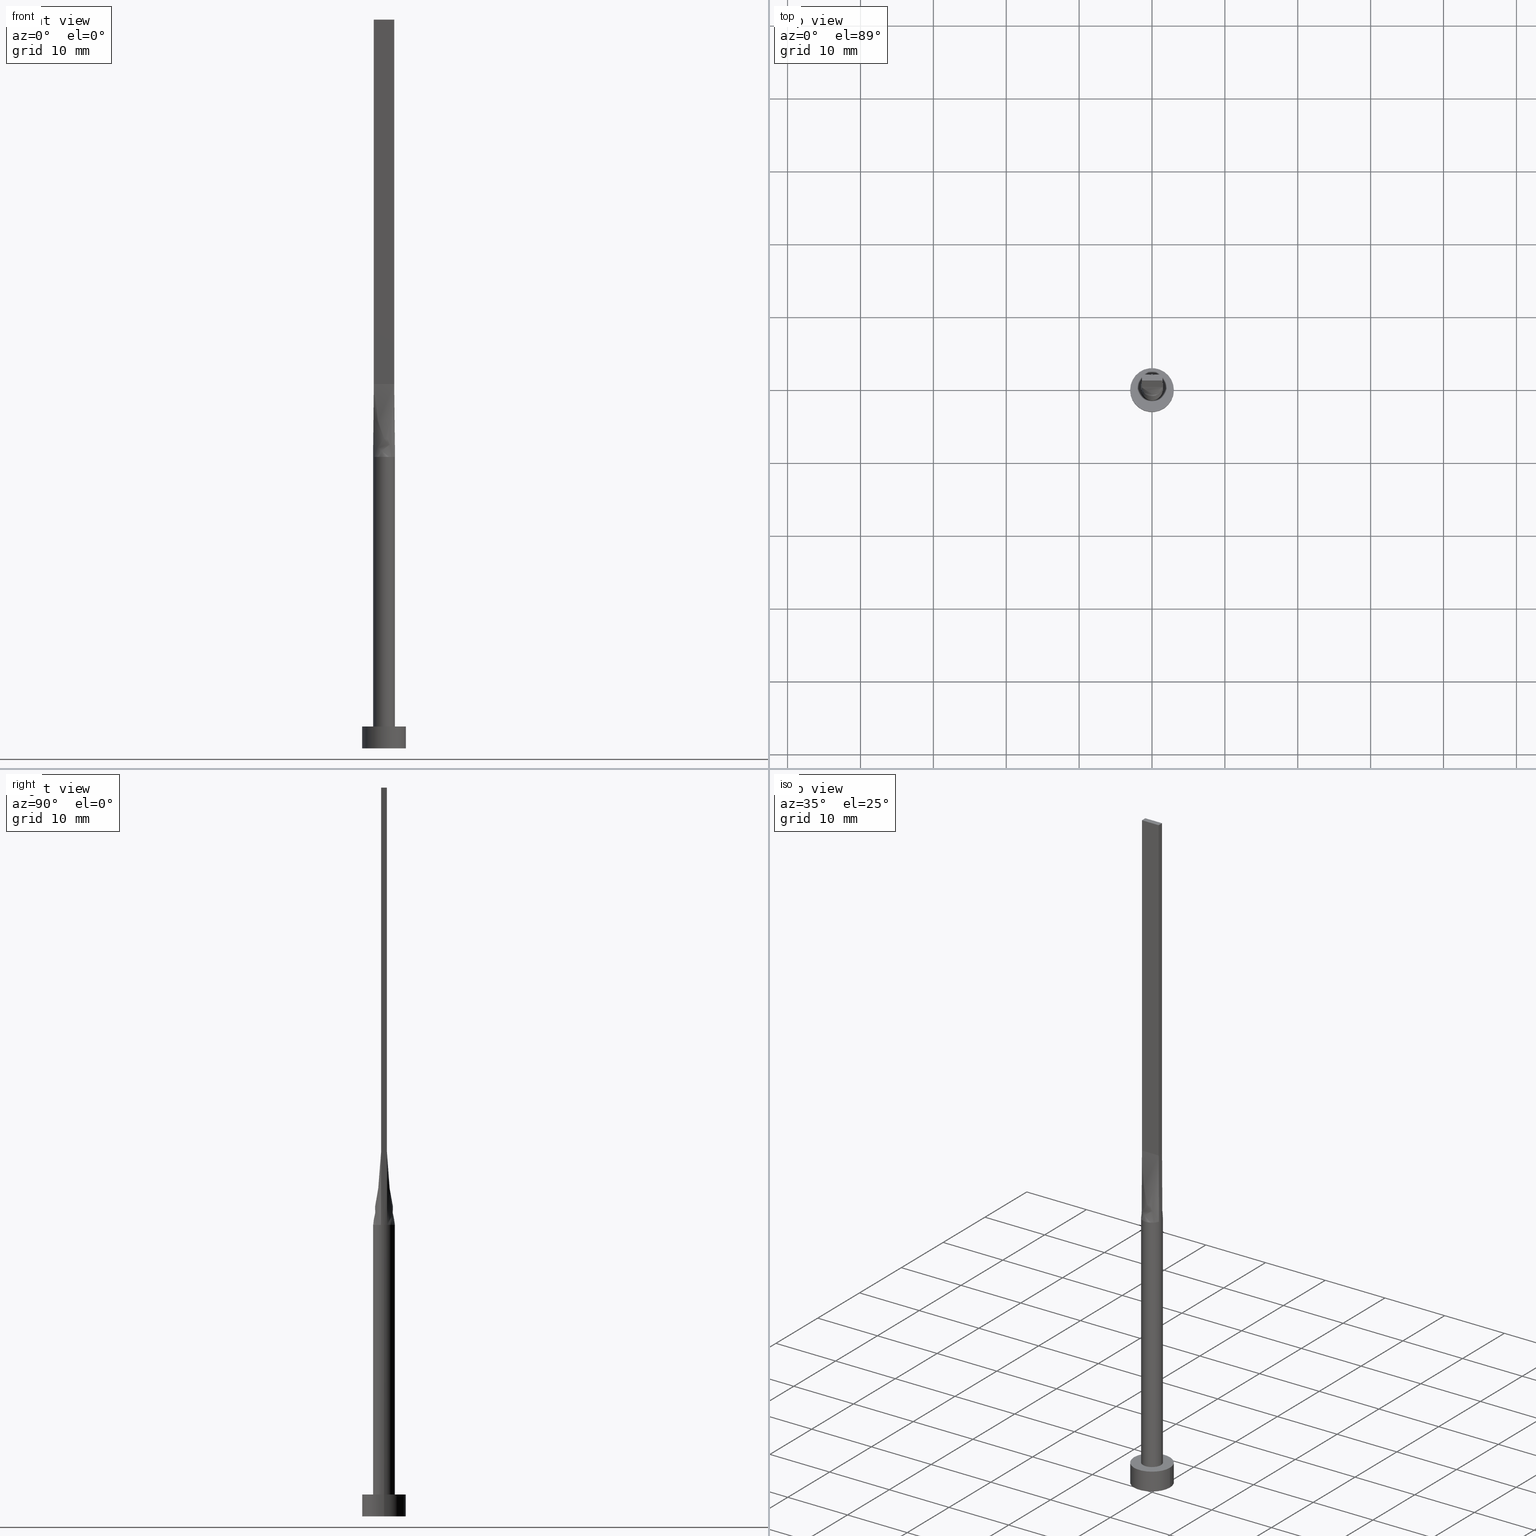
[diagram: canonical four-view strip — front | top / right | iso, engineering-drawing reading convention]
A machine part, canonical four-view strip (front | top / right | iso — engineering-drawing reading convention). The complete STEP part file that produces these views, byte-faithful:
ISO-10303-21;
HEADER;
FILE_DESCRIPTION (( 'STEP AP203' ),
    '1' );
FILE_NAME ('6774.STEP',
    '2026-02-12T09:08:50',
    ( '' ),
    ( '' ),
    'SwSTEP 2.0',
    'SolidWorks 2019',
    '' );
FILE_SCHEMA (( 'CONFIG_CONTROL_DESIGN' ));
ENDSEC;

DATA;
#1 = AXIS2_PLACEMENT_3D ( 'NONE', #413, #284, #7 ) ;
#2 = CARTESIAN_POINT ( 'NONE',  ( 1.480021770517838897, 0.2800062201479540103, 40.00000000000000000 ) ) ;
#3 = VERTEX_POINT ( 'NONE', #345 ) ;
#4 = LINE ( 'NONE', #138, #515 ) ;
#5 = CARTESIAN_POINT ( 'NONE',  ( 0.1166666666666691388, 0.4000000000000001887, 50.00000000000000000 ) ) ;
#6 = DIRECTION ( 'NONE',  ( 0.000000000000000000, 0.000000000000000000, 1.000000000000000000 ) ) ;
#7 = DIRECTION ( 'NONE',  ( 1.000000000000000000, 0.000000000000000000, 0.000000000000000000 ) ) ;
#8 = CARTESIAN_POINT ( 'NONE',  ( 1.283333333333333437, 0.4000000000000001887, 50.00000000000000000 ) ) ;
#9 = CC_DESIGN_PERSON_AND_ORGANIZATION_ASSIGNMENT ( #291, #432, ( #358 ) ) ;
#10 = FACE_OUTER_BOUND ( 'NONE', #320, .T. ) ;
#11 = AXIS2_PLACEMENT_3D ( 'NONE', #95, #57, #18 ) ;
#12 = CARTESIAN_POINT ( 'NONE',  ( 3.000000000000000444, 3.673940397442060361E-16, 3.000000000000000000 ) ) ;
#13 = ADVANCED_FACE ( 'NONE', ( #519 ), #73, .T. ) ;
#14 = DIRECTION ( 'NONE',  ( -0.004228551254826029733, 0.001208157501378870997, 0.9999903298081123104 ) ) ;
#15 = PERSON_AND_ORGANIZATION_ROLE ( 'design_owner' ) ;
#16 = CARTESIAN_POINT ( 'NONE',  ( 1.212111761082483197, 0.8950936653899574935, 40.00000000000000711 ) ) ;
#17 = CALENDAR_DATE ( 2026, 12, 2 ) ;
#18 = DIRECTION ( 'NONE',  ( 0.000000000000000000, -0.000000000000000000, -1.000000000000000000 ) ) ;
#19 = PERSON_AND_ORGANIZATION ( #514, #516 ) ;
#20 = VECTOR ( 'NONE', #128, 1000.000000000000000 ) ;
#21 = PERSON_AND_ORGANIZATION ( #514, #516 ) ;
#22 = DIRECTION ( 'NONE',  ( -0.000000000000000000, -0.000000000000000000, -1.000000000000000000 ) ) ;
#23 = ORIENTED_EDGE ( 'NONE', *, *, #438, .F. ) ;
#24 = CARTESIAN_POINT ( 'NONE',  ( -0.7158926189626803049, 1.330660769095148410, 40.00000000000000000 ) ) ;
#25 = CARTESIAN_POINT ( 'NONE',  ( -0.8665786268839192896, -1.235433898681764786, 40.00000000000000000 ) ) ;
#26 = APPROVAL_STATUS ( 'not_yet_approved' ) ;
#27 = APPROVAL ( #561, 'NEUR�EN�' ) ;
#28 = CARTESIAN_POINT ( 'NONE',  ( -1.399999999999999689, 0.1333333333333336923, 50.00000000000000000 ) ) ;
#29 = VERTEX_POINT ( 'NONE', #167 ) ;
#30 = CARTESIAN_POINT ( 'NONE',  ( -0.3767059690781846548, 1.463302066271692015, 39.99999999999999289 ) ) ;
#31 = AXIS2_PLACEMENT_3D ( 'NONE', #164, #469, #393 ) ;
#32 = CC_DESIGN_PERSON_AND_ORGANIZATION_ASSIGNMENT ( #435, #375, ( #488 ) ) ;
#33 = CARTESIAN_POINT ( 'NONE',  ( -0.8166666666666652086, 0.4000000000000001887, 50.00000000000000000 ) ) ;
#34 = ORIENTED_EDGE ( 'NONE', *, *, #115, .T. ) ;
#35 = LINE ( 'NONE', #215, #401 ) ;
#36 = VERTEX_POINT ( 'NONE', #68 ) ;
#37 = VERTEX_POINT ( 'NONE', #109 ) ;
#38 = EDGE_LOOP ( 'NONE', ( #479, #402 ) ) ;
#39 = VERTEX_POINT ( 'NONE', #252 ) ;
#40 = VECTOR ( 'NONE', #168, 1000.000000000000000 ) ;
#41 = UNCERTAINTY_MEASURE_WITH_UNIT (LENGTH_MEASURE( 1.000000000000000082E-05 ), #499, 'distance_accuracy_value', 'NONE');
#42 = LOCAL_TIME ( 10, 8, 50.00000000000000000, #288 ) ;
#43 = ORIENTED_EDGE ( 'NONE', *, *, #223, .T. ) ;
#44 = CARTESIAN_POINT ( 'NONE',  ( 0.8665786268839185125, -1.235433898681766340, 40.00000000000002132 ) ) ;
#45 = DIRECTION ( 'NONE',  ( 1.000000000000000000, 0.000000000000000000, -0.000000000000000000 ) ) ;
#46 = ORIENTED_EDGE ( 'NONE', *, *, #301, .F. ) ;
#47 = CARTESIAN_POINT ( 'NONE',  ( -3.000000000000000444, 0.000000000000000000, 3.000000000000000000 ) ) ;
#48 = CARTESIAN_POINT ( 'NONE',  ( 1.399999999999999689, 0.2666666666666668295, 50.00000000000000000 ) ) ;
#49 = EDGE_CURVE ( 'NONE', #267, #169, #248, .T. ) ;
#50 = ORIENTED_EDGE ( 'NONE', *, *, #191, .T. ) ;
#51 = VECTOR ( 'NONE', #311, 1000.000000000000000 ) ;
#52 = PLANE ( 'NONE',  #340 ) ;
#53 = FACE_OUTER_BOUND ( 'NONE', #181, .T. ) ;
#54 = EDGE_CURVE ( 'NONE', #39, #364, #478, .T. ) ;
#55 = DIRECTION ( 'NONE',  ( 1.000000000000000000, 0.000000000000000000, 0.000000000000000000 ) ) ;
#56 = CARTESIAN_POINT ( 'NONE',  ( -3.000000000000000444, 0.000000000000000000, 3.000000000000000000 ) ) ;
#57 = DIRECTION ( 'NONE',  ( 0.000000000000000000, -1.000000000000000000, 0.000000000000000000 ) ) ;
#58 = AXIS2_PLACEMENT_3D ( 'NONE', #111, #190, #415 ) ;
#59 = COORDINATED_UNIVERSAL_TIME_OFFSET ( 1, 0, .AHEAD. ) ;
#60 = CARTESIAN_POINT ( 'NONE',  ( -1.442368678646663405, -0.4121057215347019853, 40.00000000000000000 ) ) ;
#61 = FACE_OUTER_BOUND ( 'NONE', #440, .T. ) ;
#62 = ADVANCED_FACE ( 'NONE', ( #338 ), #197, .T. ) ;
#63 = DIRECTION ( 'NONE',  ( 0.000000000000000000, 0.000000000000000000, 1.000000000000000000 ) ) ;
#64 = DATE_AND_TIME ( #463, #206 ) ;
#65 = SHAPE_DEFINITION_REPRESENTATION ( #550, #495 ) ;
#66 = VECTOR ( 'NONE', #226, 1000.000000000000000 ) ;
#67 = ORIENTED_EDGE ( 'NONE', *, *, #438, .T. ) ;
#68 = CARTESIAN_POINT ( 'NONE',  ( 1.500000000000000000, -9.795443734464536283E-18, 39.99999999999999289 ) ) ;
#69 = EDGE_CURVE ( 'NONE', #37, #3, #81, .T. ) ;
#70 = CARTESIAN_POINT ( 'NONE',  ( -1.283333333333333437, -0.3999999999999996336, 50.00000000000000000 ) ) ;
#71 = CC_DESIGN_DATE_AND_TIME_ASSIGNMENT ( #151, #107, ( #343 ) ) ;
#72 = CARTESIAN_POINT ( 'NONE',  ( -1.442285921461235132, -0.4120816918460665224, 40.00000000000000000 ) ) ;
#73 = CYLINDRICAL_SURFACE ( 'NONE', #31, 1.500000000000000222 ) ;
#74 = VECTOR ( 'NONE', #22, 1000.000000000000000 ) ;
#75 = APPROVAL_PERSON_ORGANIZATION ( #19, #27, #210 ) ;
#76 = ORIENTED_EDGE ( 'NONE', *, *, #373, .T. ) ;
#77 = CARTESIAN_POINT ( 'NONE',  ( 1.409267053536706671, -0.5276477295819165247, 40.00000000000000000 ) ) ;
#78 = ORIENTED_EDGE ( 'NONE', *, *, #511, .T. ) ;
#79 = VERTEX_POINT ( 'NONE', #236 ) ;
#80 = ORIENTED_EDGE ( 'NONE', *, *, #165, .T. ) ;
#81 = CIRCLE ( 'NONE', #1, 1.500000000000000222 ) ;
#82 = ORIENTED_EDGE ( 'NONE', *, *, #115, .F. ) ;
#83 = CARTESIAN_POINT ( 'NONE',  ( 1.166666666666666963, 0.4000000000000001332, 50.00000000000000000 ) ) ;
#84 = CC_DESIGN_PERSON_AND_ORGANIZATION_ASSIGNMENT ( #203, #382, ( #343 ) ) ;
#85 = CARTESIAN_POINT ( 'NONE',  ( -1.359280768448767329, 0.6502025712814717417, 40.00000000000002132 ) ) ;
#86 = VERTEX_POINT ( 'NONE', #56 ) ;
#87 = CARTESIAN_POINT ( 'NONE',  ( 0.000000000000000000, 0.000000000000000000, 3.000000000000000000 ) ) ;
#88 = APPLICATION_CONTEXT ( 'configuration controlled 3d designs of mechanical parts and assemblies' ) ;
#89 = ORIENTED_EDGE ( 'NONE', *, *, #571, .F. ) ;
#90 = FACE_OUTER_BOUND ( 'NONE', #530, .T. ) ;
#91 = CIRCLE ( 'NONE', #240, 1.500000000000000222 ) ;
#92 = CARTESIAN_POINT ( 'NONE',  ( -1.399999999999999689, 0.4000000000000002442, 50.00000000000000000 ) ) ;
#93 = CARTESIAN_POINT ( 'NONE',  ( 1.421142960730617411, -0.4060408459230334111, 45.00000000000000000 ) ) ;
#94 = DIRECTION ( 'NONE',  ( 0.000000000000000000, 0.000000000000000000, 1.000000000000000000 ) ) ;
#95 = CARTESIAN_POINT ( 'NONE',  ( 1.399999999999999689, 0.4000000000000002442, 100.0000000000000000 ) ) ;
#96 = DIRECTION ( 'NONE',  ( 1.000000000000000000, 0.000000000000000000, -0.000000000000000000 ) ) ;
#97 = CARTESIAN_POINT ( 'NONE',  ( 1.442393550978850802, -0.4121129214357137083, 40.00000000000000000 ) ) ;
#98 = AXIS2_PLACEMENT_3D ( 'NONE', #383, #559, #157 ) ;
#99 = LOCAL_TIME ( 10, 8, 50.00000000000000000, #59 ) ;
#100 = PERSON_AND_ORGANIZATION ( #514, #516 ) ;
#101 = PRODUCT ( '6774', '6774', '', ( #385 ) ) ;
#102 = CLOSED_SHELL ( 'NONE', ( #13, #256, #368, #546, #112, #209, #332, #468, #62, #243, #292, #290, #153, #179, #493 ) ) ;
#103 = CARTESIAN_POINT ( 'NONE',  ( 1.409267053536706671, 0.5276477295819161917, 39.99999999999999289 ) ) ;
#104 = DATE_AND_TIME ( #17, #42 ) ;
#105 = DIRECTION ( 'NONE',  ( 5.808225924029488744E-17, 1.000000000000000000, -0.000000000000000000 ) ) ;
#106 = B_SPLINE_SURFACE_WITH_KNOTS ( 'NONE', 3, 1, ( 
 ( #233, #449 ),
 ( #456, #491 ),
 ( #323, #365 ),
 ( #407, #451 ),
 ( #2, #48 ),
 ( #188, #362 ) ),
 .UNSPECIFIED., .F., .F., .F.,
 ( 4, 2, 4 ),
 ( 2, 2 ),
 ( 0.000000000000000000, 0.5000000000000000000, 1.000000000000000000 ),
 ( 0.000000000000000000, 1.000000000000000000 ),
 .UNSPECIFIED. ) ;
#107 = DATE_TIME_ROLE ( 'creation_date' ) ;
#108 = CARTESIAN_POINT ( 'NONE',  ( 1.399999999999999689, 0.4000000000000002442, 100.0000000000000000 ) ) ;
#109 = CARTESIAN_POINT ( 'NONE',  ( -1.442387148345315895, 0.4121110244020492197, 40.00000000000000000 ) ) ;
#110 = CARTESIAN_POINT ( 'NONE',  ( 0.1885753531885892564, -1.499999999999999778, 40.00000000000000000 ) ) ;
#111 = CARTESIAN_POINT ( 'NONE',  ( 1.399999999999999911, -0.3999999999999998002, 100.0000000000000000 ) ) ;
#112 = ADVANCED_FACE ( 'NONE', ( #363 ), #319, .F. ) ;
#113 = AXIS2_PLACEMENT_3D ( 'NONE', #376, #503, #204 ) ;
#114 = ORIENTED_EDGE ( 'NONE', *, *, #446, .T. ) ;
#115 = EDGE_CURVE ( 'NONE', #169, #79, #366, .T. ) ;
#116 = DIRECTION ( 'NONE',  ( -1.000000000000000000, 0.000000000000000000, 0.000000000000000000 ) ) ;
#117 = CARTESIAN_POINT ( 'NONE',  ( 1.500000000000000222, 1.836970198721030181E-16, 40.00000000000000000 ) ) ;
#118 = CARTESIAN_POINT ( 'NONE',  ( -0.1885753531885899226, 1.500000000000000888, 40.00000000000000000 ) ) ;
#119 = CARTESIAN_POINT ( 'NONE',  ( -1.399999999999999911, -0.2666666666666661634, 50.00000000000000000 ) ) ;
#120 = CARTESIAN_POINT ( 'NONE',  ( -1.114527776139989212, 1.017390422009414319, 39.99999999999998579 ) ) ;
#121 = CARTESIAN_POINT ( 'NONE',  ( -1.114527776139990323, -1.017390422009413209, 39.99999999999999289 ) ) ;
#122 = ORIENTED_EDGE ( 'NONE', *, *, #566, .T. ) ;
#123 = CARTESIAN_POINT ( 'NONE',  ( -1.399999999999999689, 0.4000000000000002442, 50.00000000000000000 ) ) ;
#124 = FACE_OUTER_BOUND ( 'NONE', #335, .T. ) ;
#125 = ORIENTED_EDGE ( 'NONE', *, *, #504, .T. ) ;
#126 = EDGE_LOOP ( 'NONE', ( #176, #441, #339, #313 ) ) ;
#127 = CARTESIAN_POINT ( 'NONE',  ( 0.4666666666666663965, -0.3999999999999997446, 50.00000000000000000 ) ) ;
#128 = DIRECTION ( 'NONE',  ( 1.000000000000000000, -5.808225924029488744E-17, 0.000000000000000000 ) ) ;
#129 = ORIENTED_EDGE ( 'NONE', *, *, #511, .F. ) ;
#130 = LINE ( 'NONE', #526, #20 ) ;
#131 = ORIENTED_EDGE ( 'NONE', *, *, #165, .F. ) ;
#132 = EDGE_CURVE ( 'NONE', #350, #303, #389, .T. ) ;
#133 = CARTESIAN_POINT ( 'NONE',  ( 1.399999999999999911, -0.3999999999999998002, 50.00000000000000000 ) ) ;
#134 = CARTESIAN_POINT ( 'NONE',  ( -1.399999999999999689, 0.4000000000000002442, 100.0000000000000000 ) ) ;
#135 = VERTEX_POINT ( 'NONE', #498 ) ;
#136 = LINE ( 'NONE', #92, #521 ) ;
#137 = ORIENTED_EDGE ( 'NONE', *, *, #464, .F. ) ;
#138 = CARTESIAN_POINT ( 'NONE',  ( 1.399999999999999689, 0.4000000000000002442, 100.0000000000000000 ) ) ;
#139 = LINE ( 'NONE', #543, #170 ) ;
#140 = CARTESIAN_POINT ( 'NONE',  ( 0.000000000000000000, 0.000000000000000000, 40.00000000000000000 ) ) ;
#141 = VECTOR ( 'NONE', #541, 1000.000000000000000 ) ;
#142 = LINE ( 'NONE', #12, #141 ) ;
#143 = EDGE_CURVE ( 'NONE', #303, #169, #424, .T. ) ;
#144 = PLANE ( 'NONE',  #410 ) ;
#145 = DIRECTION ( 'NONE',  ( -1.000000000000000000, 5.808225924029488744E-17, 0.000000000000000000 ) ) ;
#146 = CARTESIAN_POINT ( 'NONE',  ( 0.7158926189626808601, 1.330660769095147966, 39.99999999999999289 ) ) ;
#147 = CYLINDRICAL_SURFACE ( 'NONE', #113, 3.000000000000000444 ) ;
#148 = EDGE_CURVE ( 'NONE', #29, #444, #279, .T. ) ;
#149 = AXIS2_PLACEMENT_3D ( 'NONE', #471, #251, #386 ) ;
#150 = LOCAL_TIME ( 10, 8, 50.00000000000000000, #160 ) ;
#151 = DATE_AND_TIME ( #156, #99 ) ;
#152 = DATE_AND_TIME ( #555, #150 ) ;
#153 = ADVANCED_FACE ( 'NONE', ( #10 ), #369, .F. ) ;
#154 = EDGE_CURVE ( 'NONE', #482, #79, #328, .T. ) ;
#155 = CARTESIAN_POINT ( 'NONE',  ( -0.2333333333333335591, -0.3999999999999996336, 50.00000000000000000 ) ) ;
#156 = CALENDAR_DATE ( 2026, 12, 2 ) ;
#157 = DIRECTION ( 'NONE',  ( 1.000000000000000000, 5.329070518200751394E-15, 0.000000000000000000 ) ) ;
#158 = ORIENTED_EDGE ( 'NONE', *, *, #143, .T. ) ;
#159 = MANIFOLD_SOLID_BREP ( 'P�idat vysunut�m5', #102 ) ;
#160 = COORDINATED_UNIVERSAL_TIME_OFFSET ( 1, 0, .AHEAD. ) ;
#161 = CARTESIAN_POINT ( 'NONE',  ( 0.3767059690781852654, 1.463302066271692015, 40.00000000000000000 ) ) ;
#162 = AXIS2_PLACEMENT_3D ( 'NONE', #140, #94, #324 ) ;
#163 = CARTESIAN_POINT ( 'NONE',  ( -1.359280768448767329, 0.6502025712814717417, 40.00000000000002132 ) ) ;
#164 = CARTESIAN_POINT ( 'NONE',  ( 0.000000000000000000, 0.000000000000000000, 40.00000000000000000 ) ) ;
#165 = EDGE_CURVE ( 'NONE', #303, #36, #199, .T. ) ;
#166 = DIRECTION ( 'NONE',  ( -1.000000000000000000, 0.000000000000000000, 0.000000000000000000 ) ) ;
#167 = CARTESIAN_POINT ( 'NONE',  ( -1.399999999999999689, 0.4000000000000002442, 100.0000000000000000 ) ) ;
#168 = DIRECTION ( 'NONE',  ( -0.004228551254826051417, -0.001208157501378865576, 0.9999903298081123104 ) ) ;
#169 = VERTEX_POINT ( 'NONE', #337 ) ;
#170 = VECTOR ( 'NONE', #238, 1000.000000000000000 ) ;
#171 = EDGE_LOOP ( 'NONE', ( #217, #403 ) ) ;
#172 = CC_DESIGN_SECURITY_CLASSIFICATION ( #358, ( #488 ) ) ;
#173 = DIRECTION ( 'NONE',  ( -0.004228551254826051417, -0.001208157501378827629, -0.9999903298081123104 ) ) ;
#174 = ORIENTED_EDGE ( 'NONE', *, *, #69, .T. ) ;
#175 = LINE ( 'NONE', #309, #553 ) ;
#176 = ORIENTED_EDGE ( 'NONE', *, *, #464, .T. ) ;
#177 = B_SPLINE_SURFACE_WITH_KNOTS ( 'NONE', 3, 1, ( 
 ( #465, #244 ),
 ( #426, #70 ),
 ( #391, #299 ),
 ( #517, #558 ),
 ( #121, #249 ),
 ( #25, #384 ),
 ( #477, #381 ),
 ( #560, #155 ),
 ( #336, #512 ),
 ( #110, #296 ),
 ( #422, #222 ),
 ( #305, #127 ),
 ( #44, #314 ),
 ( #225, #180 ),
 ( #404, #406 ),
 ( #183, #573 ),
 ( #77, #577 ),
 ( #533, #133 ) ),
 .UNSPECIFIED., .F., .F., .F.,
 ( 4, 2, 2, 2, 2, 2, 2, 2, 4 ),
 ( 2, 2 ),
 ( 0.000000000000000000, 0.1250000000000000833, 0.2500000000000001665, 0.3750000000000001110, 0.5000000000000001110, 0.6250000000000001110, 0.7500000000000000000, 0.8750000000000000000, 1.000000000000000000 ),
 ( 0.000000000000000000, 1.000000000000000000 ),
 .UNSPECIFIED. ) ;
#178 = CARTESIAN_POINT ( 'NONE',  ( 1.500000000000000222, 1.836970198721030181E-16, 3.000000000000000000 ) ) ;
#179 = ADVANCED_FACE ( 'NONE', ( #539 ), #513, .F. ) ;
#180 = CARTESIAN_POINT ( 'NONE',  ( 0.8166666666666663188, -0.3999999999999997446, 50.00000000000000000 ) ) ;
#181 = EDGE_LOOP ( 'NONE', ( #80, #483, #522, #82, #307 ) ) ;
#182 = APPROVAL ( #26, 'NEUR�EN�' ) ;
#183 = CARTESIAN_POINT ( 'NONE',  ( 1.359280768448766663, -0.6502025712814719638, 40.00000000000000000 ) ) ;
#184 = DIRECTION ( 'NONE',  ( 0.000000000000000000, 0.000000000000000000, 1.000000000000000000 ) ) ;
#185 = ORIENTED_EDGE ( 'NONE', *, *, #486, .F. ) ;
#186 = CARTESIAN_POINT ( 'NONE',  ( 0.7158926189626808601, 1.330660769095147966, 39.99999999999999289 ) ) ;
#187 = AXIS2_PLACEMENT_3D ( 'NONE', #281, #459, #55 ) ;
#188 = CARTESIAN_POINT ( 'NONE',  ( 1.442285921461234910, 0.4120816918460673550, 40.00000000000000000 ) ) ;
#189 = ORIENTED_EDGE ( 'NONE', *, *, #148, .F. ) ;
#190 = DIRECTION ( 'NONE',  ( -1.000000000000000000, -2.710505431213761085E-16, 0.000000000000000000 ) ) ;
#191 = EDGE_CURVE ( 'NONE', #482, #29, #4, .T. ) ;
#192 = CARTESIAN_POINT ( 'NONE',  ( -0.1885753531885899226, 1.500000000000000888, 40.00000000000000000 ) ) ;
#193 = CARTESIAN_POINT ( 'NONE',  ( -1.409267053536706671, 0.5276477295819163027, 40.00000000000000711 ) ) ;
#194 = DIRECTION ( 'NONE',  ( 1.000000000000000000, 0.000000000000000000, -0.000000000000000000 ) ) ;
#195 = CARTESIAN_POINT ( 'NONE',  ( 1.409267053536706671, 0.5276477295819161917, 39.99999999999999289 ) ) ;
#196 = CARTESIAN_POINT ( 'NONE',  ( 1.399999999999999689, 0.4000000000000002442, 100.0000000000000000 ) ) ;
#197 = B_SPLINE_SURFACE_WITH_KNOTS ( 'NONE', 3, 1, ( 
 ( #380, #254 ),
 ( #436, #556 ),
 ( #473, #28 ),
 ( #387, #563 ),
 ( #342, #119 ),
 ( #72, #535 ) ),
 .UNSPECIFIED., .F., .F., .F.,
 ( 4, 2, 4 ),
 ( 2, 2 ),
 ( 0.000000000000000000, 0.5000000000000000000, 1.000000000000000000 ),
 ( 0.000000000000000000, 1.000000000000000000 ),
 .UNSPECIFIED. ) ;
#198 = CARTESIAN_POINT ( 'NONE',  ( 1.442362338805188937, 0.4121038472597355895, 40.00000000000000000 ) ) ;
#199 = CIRCLE ( 'NONE', #98, 1.500000000000000222 ) ;
#200 = DIRECTION ( 'NONE',  ( 0.000000000000000000, 0.000000000000000000, 1.000000000000000000 ) ) ;
#201 = FACE_OUTER_BOUND ( 'NONE', #580, .T. ) ;
#202 = DESIGN_CONTEXT ( 'detailed design', #259, 'design' ) ;
#203 = PERSON_AND_ORGANIZATION ( #514, #516 ) ;
#204 = DIRECTION ( 'NONE',  ( -1.000000000000000000, 0.000000000000000000, 0.000000000000000000 ) ) ;
#205 = AXIS2_PLACEMENT_3D ( 'NONE', #239, #418, #194 ) ;
#206 = LOCAL_TIME ( 10, 8, 50.00000000000000000, #460 ) ;
#207 = DIRECTION ( 'NONE',  ( 1.000000000000000000, 0.000000000000000000, 0.000000000000000000 ) ) ;
#208 = CARTESIAN_POINT ( 'NONE',  ( 1.399999999999999911, -0.3999999999999998002, 100.0000000000000000 ) ) ;
#209 = ADVANCED_FACE ( 'NONE', ( #90 ), #564, .T. ) ;
#210 = APPROVAL_ROLE ( '' ) ;
#211 = ORIENTED_EDGE ( 'NONE', *, *, #373, .F. ) ;
#212 = CARTESIAN_POINT ( 'NONE',  ( -0.4666666666666647867, 0.4000000000000001887, 50.00000000000000000 ) ) ;
#213 = DIRECTION ( 'NONE',  ( 0.000000000000000000, 0.000000000000000000, 1.000000000000000000 ) ) ;
#214 = DIRECTION ( 'NONE',  ( -0.000000000000000000, -0.000000000000000000, -1.000000000000000000 ) ) ;
#215 = CARTESIAN_POINT ( 'NONE',  ( -1.421142960730617633, -0.4060408459230329670, 45.00000000000000000 ) ) ;
#216 = CARTESIAN_POINT ( 'NONE',  ( -0.1166666666666642399, 0.4000000000000001887, 50.00000000000000000 ) ) ;
#217 = ORIENTED_EDGE ( 'NONE', *, *, #360, .F. ) ;
#218 = ORIENTED_EDGE ( 'NONE', *, *, #540, .F. ) ;
#219 =( GEOMETRIC_REPRESENTATION_CONTEXT ( 3 ) GLOBAL_UNCERTAINTY_ASSIGNED_CONTEXT ( ( #41 ) ) GLOBAL_UNIT_ASSIGNED_CONTEXT ( ( #499, #280, #547 ) ) REPRESENTATION_CONTEXT ( 'NONE', 'WORKASPACE' ) );
#220 = CARTESIAN_POINT ( 'NONE',  ( 0.000000000000000000, 0.000000000000000000, 40.00000000000000000 ) ) ;
#221 = ORIENTED_EDGE ( 'NONE', *, *, #317, .F. ) ;
#222 = CARTESIAN_POINT ( 'NONE',  ( 0.2333333333333330872, -0.3999999999999996891, 50.00000000000000000 ) ) ;
#223 = EDGE_CURVE ( 'NONE', #364, #39, #302, .T. ) ;
#224 = ORIENTED_EDGE ( 'NONE', *, *, #230, .T. ) ;
#225 = CARTESIAN_POINT ( 'NONE',  ( 1.114527776139989435, -1.017390422009414541, 40.00000000000000711 ) ) ;
#226 = DIRECTION ( 'NONE',  ( -2.710505431213761085E-16, 1.000000000000000000, 0.000000000000000000 ) ) ;
#227 = EDGE_LOOP ( 'NONE', ( #174, #224, #23, #46, #567 ) ) ;
#228 = EDGE_CURVE ( 'NONE', #36, #445, #562, .T. ) ;
#229 = CARTESIAN_POINT ( 'NONE',  ( -1.500000000000000222, 0.000000000000000000, 3.000000000000000000 ) ) ;
#230 = EDGE_CURVE ( 'NONE', #3, #350, #266, .T. ) ;
#231 = ORIENTED_EDGE ( 'NONE', *, *, #132, .F. ) ;
#232 = AXIS2_PLACEMENT_3D ( 'NONE', #220, #529, #575 ) ;
#233 = CARTESIAN_POINT ( 'NONE',  ( 1.442285921461234688, -0.4120816918460675771, 40.00000000000000000 ) ) ;
#234 = CARTESIAN_POINT ( 'NONE',  ( 0.5833333333333349247, 0.4000000000000001887, 50.00000000000000000 ) ) ;
#235 = LINE ( 'NONE', #494, #66 ) ;
#236 = CARTESIAN_POINT ( 'NONE',  ( 1.399999999999999689, 0.4000000000000002442, 50.00000000000000000 ) ) ;
#237 = CC_DESIGN_DATE_AND_TIME_ASSIGNMENT ( #64, #246, ( #358 ) ) ;
#238 = DIRECTION ( 'NONE',  ( -0.000000000000000000, -0.000000000000000000, -1.000000000000000000 ) ) ;
#239 = CARTESIAN_POINT ( 'NONE',  ( 0.000000000000000000, 0.000000000000000000, 0.000000000000000000 ) ) ;
#240 = AXIS2_PLACEMENT_3D ( 'NONE', #87, #6, #315 ) ;
#241 = AXIS2_PLACEMENT_3D ( 'NONE', #579, #184, #411 ) ;
#242 = AXIS2_PLACEMENT_3D ( 'NONE', #330, #63, #207 ) ;
#243 = ADVANCED_FACE ( 'NONE', ( #276 ), #264, .T. ) ;
#244 = CARTESIAN_POINT ( 'NONE',  ( -1.399999999999999911, -0.3999999999999996336, 50.00000000000000000 ) ) ;
#245 = APPROVAL_ROLE ( '' ) ;
#246 = DATE_TIME_ROLE ( 'classification_date' ) ;
#247 = VECTOR ( 'NONE', #214, 1000.000000000000000 ) ;
#248 = LINE ( 'NONE', #208, #247 ) ;
#249 = CARTESIAN_POINT ( 'NONE',  ( -0.8166666666666664298, -0.3999999999999996336, 50.00000000000000000 ) ) ;
#250 = APPROVAL_STATUS ( 'not_yet_approved' ) ;
#251 = DIRECTION ( 'NONE',  ( 0.000000000000000000, 0.000000000000000000, 1.000000000000000000 ) ) ;
#252 = CARTESIAN_POINT ( 'NONE',  ( 3.000000000000000444, 3.673940397442060361E-16, 0.000000000000000000 ) ) ;
#253 = CYLINDRICAL_SURFACE ( 'NONE', #312, 3.000000000000000444 ) ;
#254 = CARTESIAN_POINT ( 'NONE',  ( -1.399999999999999689, 0.4000000000000002442, 50.00000000000000000 ) ) ;
#255 = CARTESIAN_POINT ( 'NONE',  ( 0.000000000000000000, 0.000000000000000000, 40.00000000000000000 ) ) ;
#256 = ADVANCED_FACE ( 'NONE', ( #124 ), #253, .T. ) ;
#257 = VECTOR ( 'NONE', #354, 1000.000000000000000 ) ;
#258 = APPROVAL_PERSON_ORGANIZATION ( #510, #182, #245 ) ;
#259 = APPLICATION_CONTEXT ( 'configuration controlled 3d designs of mechanical parts and assemblies' ) ;
#260 = ORIENTED_EDGE ( 'NONE', *, *, #49, .F. ) ;
#261 = CARTESIAN_POINT ( 'NONE',  ( -0.3767059690781846548, 1.463302066271692015, 39.99999999999999289 ) ) ;
#262 = EDGE_LOOP ( 'NONE', ( #125, #525, #263, #355 ) ) ;
#263 = ORIENTED_EDGE ( 'NONE', *, *, #191, .F. ) ;
#264 = B_SPLINE_SURFACE_WITH_KNOTS ( 'NONE', 3, 1, ( 
 ( #528, #490 ),
 ( #195, #8 ),
 ( #325, #83 ),
 ( #367, #352 ),
 ( #419, #270 ),
 ( #581, #234 ),
 ( #186, #359 ),
 ( #537, #274 ),
 ( #453, #5 ),
 ( #192, #216 ),
 ( #261, #396 ),
 ( #392, #212 ),
 ( #442, #476 ),
 ( #120, #33 ),
 ( #569, #346 ),
 ( #163, #390 ),
 ( #341, #344 ),
 ( #347, #300 ) ),
 .UNSPECIFIED., .F., .F., .F.,
 ( 4, 2, 2, 2, 2, 2, 2, 2, 4 ),
 ( 2, 2 ),
 ( 0.000000000000000000, 0.1250000000000000833, 0.2500000000000001665, 0.3750000000000001110, 0.5000000000000001110, 0.6250000000000002220, 0.7500000000000001110, 0.8750000000000001110, 1.000000000000000000 ),
 ( 0.000000000000000000, 1.000000000000000000 ),
 .UNSPECIFIED. ) ;
#265 = EDGE_LOOP ( 'NONE', ( #398, #484, #520, #221, #536, #137 ) ) ;
#266 = CIRCLE ( 'NONE', #437, 1.500000000000000222 ) ;
#267 = VERTEX_POINT ( 'NONE', #298 ) ;
#268 = CARTESIAN_POINT ( 'NONE',  ( -1.399999999999999911, -0.3999999999999996336, 50.00000000000000000 ) ) ;
#269 = VERTEX_POINT ( 'NONE', #198 ) ;
#270 = CARTESIAN_POINT ( 'NONE',  ( 0.8166666666666676511, 0.4000000000000001887, 50.00000000000000000 ) ) ;
#271 = CARTESIAN_POINT ( 'NONE',  ( -1.399999999999999911, -0.3999999999999996336, 100.0000000000000000 ) ) ;
#272 = CARTESIAN_POINT ( 'NONE',  ( -1.114527776139989212, 1.017390422009414319, 39.99999999999998579 ) ) ;
#273 = ORIENTED_EDGE ( 'NONE', *, *, #360, .T. ) ;
#274 = CARTESIAN_POINT ( 'NONE',  ( 0.2333333333333356130, 0.4000000000000001887, 50.00000000000000000 ) ) ;
#275 = FACE_BOUND ( 'NONE', #171, .T. ) ;
#276 = FACE_OUTER_BOUND ( 'NONE', #126, .T. ) ;
#277 = VECTOR ( 'NONE', #278, 1000.000000000000000 ) ;
#278 = DIRECTION ( 'NONE',  ( -0.000000000000000000, -0.000000000000000000, -1.000000000000000000 ) ) ;
#279 = LINE ( 'NONE', #457, #454 ) ;
#280 =( NAMED_UNIT ( * ) PLANE_ANGLE_UNIT ( ) SI_UNIT ( $, .RADIAN. ) );
#281 = CARTESIAN_POINT ( 'NONE',  ( 0.000000000000000000, 0.000000000000000000, 3.000000000000000000 ) ) ;
#282 = FACE_OUTER_BOUND ( 'NONE', #262, .T. ) ;
#283 = PERSON_AND_ORGANIZATION_ROLE ( 'design_supplier' ) ;
#284 = DIRECTION ( 'NONE',  ( 0.000000000000000000, 0.000000000000000000, 1.000000000000000000 ) ) ;
#285 = CARTESIAN_POINT ( 'NONE',  ( -1.500000000000000222, 0.000000000000000000, 40.00000000000000000 ) ) ;
#286 = VECTOR ( 'NONE', #462, 1000.000000000000000 ) ;
#287 = APPROVAL_PERSON_ORGANIZATION ( #21, #549, #470 ) ;
#288 = COORDINATED_UNIVERSAL_TIME_OFFSET ( 1, 0, .AHEAD. ) ;
#289 = CARTESIAN_POINT ( 'NONE',  ( -1.399999999999999911, -0.3999999999999996336, 100.0000000000000000 ) ) ;
#290 = ADVANCED_FACE ( 'NONE', ( #545 ), #144, .F. ) ;
#291 = PERSON_AND_ORGANIZATION ( #514, #516 ) ;
#292 = ADVANCED_FACE ( 'NONE', ( #282 ), #327, .F. ) ;
#293 = SECURITY_CLASSIFICATION_LEVEL ( 'unclassified' ) ;
#294 = CIRCLE ( 'NONE', #187, 1.500000000000000222 ) ;
#295 = CC_DESIGN_APPROVAL ( #549, ( #488 ) ) ;
#296 = CARTESIAN_POINT ( 'NONE',  ( 0.1166666666666663077, -0.3999999999999996336, 50.00000000000000000 ) ) ;
#297 = PRODUCT_RELATED_PRODUCT_CATEGORY ( 'detail', '', ( #101 ) ) ;
#298 = CARTESIAN_POINT ( 'NONE',  ( 1.399999999999999911, -0.3999999999999998002, 100.0000000000000000 ) ) ;
#299 = CARTESIAN_POINT ( 'NONE',  ( -1.166666666666666519, -0.3999999999999996336, 50.00000000000000000 ) ) ;
#300 = CARTESIAN_POINT ( 'NONE',  ( -1.399999999999999689, 0.4000000000000002442, 50.00000000000000000 ) ) ;
#301 = EDGE_CURVE ( 'NONE', #443, #450, #374, .T. ) ;
#302 = CIRCLE ( 'NONE', #149, 3.000000000000000444 ) ;
#303 = VERTEX_POINT ( 'NONE', #97 ) ;
#304 = CARTESIAN_POINT ( 'NONE',  ( 0.000000000000000000, 0.000000000000000000, 3.000000000000000000 ) ) ;
#305 = CARTESIAN_POINT ( 'NONE',  ( 0.7158926189626801939, -1.330660769095147744, 39.99999999999999289 ) ) ;
#306 = ORIENTED_EDGE ( 'NONE', *, *, #230, .F. ) ;
#307 = ORIENTED_EDGE ( 'NONE', *, *, #143, .F. ) ;
#308 = ORIENTED_EDGE ( 'NONE', *, *, #54, .T. ) ;
#309 = CARTESIAN_POINT ( 'NONE',  ( -1.421142960730617189, 0.4060408459230336331, 45.00000000000000000 ) ) ;
#310 = EDGE_LOOP ( 'NONE', ( #351, #89, #189, #496 ) ) ;
#311 = DIRECTION ( 'NONE',  ( -0.000000000000000000, -0.000000000000000000, -1.000000000000000000 ) ) ;
#312 = AXIS2_PLACEMENT_3D ( 'NONE', #304, #480, #116 ) ;
#313 = ORIENTED_EDGE ( 'NONE', *, *, #439, .F. ) ;
#314 = CARTESIAN_POINT ( 'NONE',  ( 0.5833333333333329263, -0.3999999999999997446, 50.00000000000000000 ) ) ;
#315 = DIRECTION ( 'NONE',  ( 1.000000000000000000, 0.000000000000000000, 0.000000000000000000 ) ) ;
#316 = ORIENTED_EDGE ( 'NONE', *, *, #446, .F. ) ;
#317 = EDGE_CURVE ( 'NONE', #3, #472, #507, .T. ) ;
#318 = CARTESIAN_POINT ( 'NONE',  ( -1.442387148345315895, 0.4121110244020492197, 40.00000000000000000 ) ) ;
#319 = PLANE ( 'NONE',  #205 ) ;
#320 = EDGE_LOOP ( 'NONE', ( #481, #260, #211, #397 ) ) ;
#321 = DIRECTION ( 'NONE',  ( -1.000000000000000000, 0.000000000000000000, 0.000000000000000000 ) ) ;
#322 = DIRECTION ( 'NONE',  ( 0.000000000000000000, 0.000000000000000000, 1.000000000000000000 ) ) ;
#323 = CARTESIAN_POINT ( 'NONE',  ( 1.500000000000000222, -0.1400549446402594711, 39.99999999999999289 ) ) ;
#324 = DIRECTION ( 'NONE',  ( 1.000000000000000000, 0.000000000000000000, 0.000000000000000000 ) ) ;
#325 = CARTESIAN_POINT ( 'NONE',  ( 1.359280768448766663, 0.6502025712814714087, 40.00000000000000711 ) ) ;
#326 = DIRECTION ( 'NONE',  ( 1.000000000000000000, 0.000000000000000000, 0.000000000000000000 ) ) ;
#327 = PLANE ( 'NONE',  #11 ) ;
#328 = LINE ( 'NONE', #108, #74 ) ;
#329 = DIRECTION ( 'NONE',  ( -2.710505431213761578E-16, -1.000000000000000000, 0.000000000000000000 ) ) ;
#330 = CARTESIAN_POINT ( 'NONE',  ( 0.000000000000000000, 0.000000000000000000, 0.000000000000000000 ) ) ;
#331 = CARTESIAN_POINT ( 'NONE',  ( -3.000000000000000444, 0.000000000000000000, 0.000000000000000000 ) ) ;
#332 = ADVANCED_FACE ( 'NONE', ( #61 ), #177, .T. ) ;
#333 = AXIS2_PLACEMENT_3D ( 'NONE', #433, #213, #565 ) ;
#334 = APPROVAL_DATE_TIME ( #430, #182 ) ;
#335 = EDGE_LOOP ( 'NONE', ( #218, #122, #308, #316 ) ) ;
#336 = CARTESIAN_POINT ( 'NONE',  ( -0.1885753531885907275, -1.500000000000000000, 40.00000000000000000 ) ) ;
#337 = CARTESIAN_POINT ( 'NONE',  ( 1.399999999999999911, -0.3999999999999998002, 50.00000000000000000 ) ) ;
#338 = FACE_OUTER_BOUND ( 'NONE', #227, .T. ) ;
#339 = ORIENTED_EDGE ( 'NONE', *, *, #504, .F. ) ;
#340 = AXIS2_PLACEMENT_3D ( 'NONE', #417, #420, #96 ) ;
#341 = CARTESIAN_POINT ( 'NONE',  ( -1.409267053536706671, 0.5276477295819163027, 40.00000000000000711 ) ) ;
#342 = CARTESIAN_POINT ( 'NONE',  ( -1.480021770517838897, -0.2800062201479532331, 40.00000000000000000 ) ) ;
#343 = PRODUCT_DEFINITION ( 'NEZN�M�', '', #488, #202 ) ;
#344 = CARTESIAN_POINT ( 'NONE',  ( -1.283333333333332993, 0.4000000000000002442, 50.00000000000000000 ) ) ;
#345 = CARTESIAN_POINT ( 'NONE',  ( -1.500000000000000222, 8.735352324927310277E-17, 39.99999999999999289 ) ) ;
#346 = CARTESIAN_POINT ( 'NONE',  ( -0.9333333333333320159, 0.4000000000000001887, 50.00000000000000000 ) ) ;
#347 = CARTESIAN_POINT ( 'NONE',  ( -1.442285921461234688, 0.4120816918460670775, 40.00000000000000000 ) ) ;
#348 = CIRCLE ( 'NONE', #431, 3.000000000000000444 ) ;
#349 = ORIENTED_EDGE ( 'NONE', *, *, #486, .T. ) ;
#350 = VERTEX_POINT ( 'NONE', #60 ) ;
#351 = ORIENTED_EDGE ( 'NONE', *, *, #301, .T. ) ;
#352 = CARTESIAN_POINT ( 'NONE',  ( 0.9333333333333342363, 0.4000000000000001332, 50.00000000000000000 ) ) ;
#353 = B_SPLINE_CURVE_WITH_KNOTS ( 'NONE', 3,
 ( #447, #103, #427, #16, #429, #554, #146, #161, #518, #118, #30, #24, #557, #272, #372, #85, #193, #318 ),
 .UNSPECIFIED., .F., .F.,
 ( 4, 2, 2, 2, 2, 2, 2, 2, 4 ),
 ( 0.000000000000000000, 0.1250000000000000833, 0.2500000000000001665, 0.3750000000000001110, 0.5000000000000001110, 0.6250000000000002220, 0.7500000000000001110, 0.8750000000000001110, 1.000000000000000000 ),
 .UNSPECIFIED. ) ;
#354 = DIRECTION ( 'NONE',  ( 1.000000000000000000, -5.808225924029488744E-17, 0.000000000000000000 ) ) ;
#355 = ORIENTED_EDGE ( 'NONE', *, *, #154, .T. ) ;
#356 = LINE ( 'NONE', #47, #51 ) ;
#357 = PLANE ( 'NONE',  #370 ) ;
#358 = SECURITY_CLASSIFICATION ( '', '', #293 ) ;
#359 = CARTESIAN_POINT ( 'NONE',  ( 0.4666666666666685059, 0.4000000000000001887, 50.00000000000000000 ) ) ;
#360 = EDGE_CURVE ( 'NONE', #472, #445, #294, .T. ) ;
#361 = CC_DESIGN_PERSON_AND_ORGANIZATION_ASSIGNMENT ( #100, #15, ( #101 ) ) ;
#362 = CARTESIAN_POINT ( 'NONE',  ( 1.399999999999999689, 0.4000000000000002442, 50.00000000000000000 ) ) ;
#363 = FACE_OUTER_BOUND ( 'NONE', #38, .T. ) ;
#364 = VERTEX_POINT ( 'NONE', #331 ) ;
#365 = CARTESIAN_POINT ( 'NONE',  ( 1.399999999999999689, -0.1333333333333331372, 50.00000000000000000 ) ) ;
#366 = LINE ( 'NONE', #542, #572 ) ;
#367 = CARTESIAN_POINT ( 'NONE',  ( 1.212111761082483197, 0.8950936653899574935, 40.00000000000000711 ) ) ;
#368 = ADVANCED_FACE ( 'NONE', ( #201 ), #147, .T. ) ;
#369 = PLANE ( 'NONE',  #461 ) ;
#370 = AXIS2_PLACEMENT_3D ( 'NONE', #538, #200, #45 ) ;
#371 = CC_DESIGN_APPROVAL ( #27, ( #358 ) ) ;
#372 = CARTESIAN_POINT ( 'NONE',  ( -1.212111761082482975, 0.8950936653899578266, 40.00000000000001421 ) ) ;
#373 = EDGE_CURVE ( 'NONE', #444, #267, #552, .T. ) ;
#374 = LINE ( 'NONE', #548, #485 ) ;
#375 = PERSON_AND_ORGANIZATION_ROLE ( 'creator' ) ;
#376 = CARTESIAN_POINT ( 'NONE',  ( 0.000000000000000000, 0.000000000000000000, 3.000000000000000000 ) ) ;
#377 = APPLICATION_PROTOCOL_DEFINITION ( 'international standard', 'config_control_design', 1994, #259 ) ;
#378 = CIRCLE ( 'NONE', #241, 3.000000000000000444 ) ;
#379 = APPROVAL_DATE_TIME ( #104, #549 ) ;
#380 = CARTESIAN_POINT ( 'NONE',  ( -1.442285921461234688, 0.4120816918460674105, 40.00000000000000000 ) ) ;
#381 = CARTESIAN_POINT ( 'NONE',  ( -0.4666666666666666186, -0.3999999999999996336, 50.00000000000000000 ) ) ;
#382 = PERSON_AND_ORGANIZATION_ROLE ( 'creator' ) ;
#383 = CARTESIAN_POINT ( 'NONE',  ( 0.000000000000000000, 0.000000000000000000, 40.00000000000000000 ) ) ;
#384 = CARTESIAN_POINT ( 'NONE',  ( -0.5833333333333331483, -0.3999999999999996336, 50.00000000000000000 ) ) ;
#385 = MECHANICAL_CONTEXT ( 'NONE', #88, 'mechanical' ) ;
#386 = DIRECTION ( 'NONE',  ( 1.000000000000000000, 0.000000000000000000, 0.000000000000000000 ) ) ;
#387 = CARTESIAN_POINT ( 'NONE',  ( -1.500000000000000222, -0.1400549446402585274, 39.99999999999998579 ) ) ;
#388 = EDGE_CURVE ( 'NONE', #36, #269, #487, .T. ) ;
#389 = CIRCLE ( 'NONE', #162, 1.500000000000000222 ) ;
#390 = CARTESIAN_POINT ( 'NONE',  ( -1.166666666666666075, 0.4000000000000002442, 50.00000000000000000 ) ) ;
#391 = CARTESIAN_POINT ( 'NONE',  ( -1.359280768448767551, -0.6502025712814705205, 39.99999999999999289 ) ) ;
#392 = CARTESIAN_POINT ( 'NONE',  ( -0.7158926189626803049, 1.330660769095148410, 40.00000000000000000 ) ) ;
#393 = DIRECTION ( 'NONE',  ( -1.000000000000000000, 0.000000000000000000, 0.000000000000000000 ) ) ;
#394 = EDGE_CURVE ( 'NONE', #450, #169, #130, .T. ) ;
#395 = LINE ( 'NONE', #568, #40 ) ;
#396 = CARTESIAN_POINT ( 'NONE',  ( -0.2333333333333311721, 0.4000000000000001887, 50.00000000000000000 ) ) ;
#397 = ORIENTED_EDGE ( 'NONE', *, *, #571, .T. ) ;
#398 = ORIENTED_EDGE ( 'NONE', *, *, #388, .F. ) ;
#399 = DIRECTION ( 'NONE',  ( 0.004228551254826029733, -0.001208157501378838471, 0.9999903298081123104 ) ) ;
#400 = DIRECTION ( 'NONE',  ( -0.000000000000000000, -0.000000000000000000, -1.000000000000000000 ) ) ;
#401 = VECTOR ( 'NONE', #173, 1000.000000000000000 ) ;
#402 = ORIENTED_EDGE ( 'NONE', *, *, #54, .F. ) ;
#403 = ORIENTED_EDGE ( 'NONE', *, *, #524, .F. ) ;
#404 = CARTESIAN_POINT ( 'NONE',  ( 1.212111761082483197, -0.8950936653899579376, 40.00000000000000000 ) ) ;
#405 = EDGE_LOOP ( 'NONE', ( #349, #489 ) ) ;
#406 = CARTESIAN_POINT ( 'NONE',  ( 0.9333333333333330151, -0.3999999999999997446, 50.00000000000000000 ) ) ;
#407 = CARTESIAN_POINT ( 'NONE',  ( 1.499999999999999556, 0.1400549446402590548, 39.99999999999998579 ) ) ;
#408 = EDGE_LOOP ( 'NONE', ( #50, #576, #76, #78 ) ) ;
#409 = CARTESIAN_POINT ( 'NONE',  ( 0.000000000000000000, 0.000000000000000000, 40.00000000000000000 ) ) ;
#410 = AXIS2_PLACEMENT_3D ( 'NONE', #501, #428, #509 ) ;
#411 = DIRECTION ( 'NONE',  ( 1.000000000000000000, 0.000000000000000000, 0.000000000000000000 ) ) ;
#412 = CC_DESIGN_APPROVAL ( #182, ( #343 ) ) ;
#413 = CARTESIAN_POINT ( 'NONE',  ( 0.000000000000000000, 0.000000000000000000, 40.00000000000000000 ) ) ;
#414 = ORIENTED_EDGE ( 'NONE', *, *, #394, .F. ) ;
#415 = DIRECTION ( 'NONE',  ( 2.710505431213761085E-16, -1.000000000000000000, 0.000000000000000000 ) ) ;
#416 = DIRECTION ( 'NONE',  ( 1.000000000000000000, 0.000000000000000000, 0.000000000000000000 ) ) ;
#417 = CARTESIAN_POINT ( 'NONE',  ( 0.000000000000000000, 0.000000000000000000, 3.000000000000000000 ) ) ;
#418 = DIRECTION ( 'NONE',  ( 0.000000000000000000, 0.000000000000000000, 1.000000000000000000 ) ) ;
#419 = CARTESIAN_POINT ( 'NONE',  ( 1.114527776139990101, 1.017390422009413431, 39.99999999999997868 ) ) ;
#420 = DIRECTION ( 'NONE',  ( 0.000000000000000000, 0.000000000000000000, 1.000000000000000000 ) ) ;
#421 = DIRECTION ( 'NONE',  ( -2.710505431213761578E-16, -1.000000000000000000, 0.000000000000000000 ) ) ;
#422 = CARTESIAN_POINT ( 'NONE',  ( 0.3767059690781844328, -1.463302066271691571, 40.00000000000000000 ) ) ;
#423 = FACE_OUTER_BOUND ( 'NONE', #408, .T. ) ;
#424 = LINE ( 'NONE', #93, #531 ) ;
#425 = VECTOR ( 'NONE', #475, 1000.000000000000000 ) ;
#426 = CARTESIAN_POINT ( 'NONE',  ( -1.409267053536706893, -0.5276477295819155255, 39.99999999999999289 ) ) ;
#427 = CARTESIAN_POINT ( 'NONE',  ( 1.359280768448766663, 0.6502025712814714087, 40.00000000000000711 ) ) ;
#428 = DIRECTION ( 'NONE',  ( 1.000000000000000000, -2.710505431213761578E-16, 0.000000000000000000 ) ) ;
#429 = CARTESIAN_POINT ( 'NONE',  ( 1.114527776139990101, 1.017390422009413431, 39.99999999999997868 ) ) ;
#430 = DATE_AND_TIME ( #551, #532 ) ;
#431 = AXIS2_PLACEMENT_3D ( 'NONE', #502, #458, #326 ) ;
#432 = PERSON_AND_ORGANIZATION_ROLE ( 'classification_officer' ) ;
#433 = CARTESIAN_POINT ( 'NONE',  ( 0.000000000000000000, 0.000000000000000000, 0.000000000000000000 ) ) ;
#434 = EDGE_CURVE ( 'NONE', #37, #443, #175, .T. ) ;
#435 = PERSON_AND_ORGANIZATION ( #514, #516 ) ;
#436 = CARTESIAN_POINT ( 'NONE',  ( -1.480021770517838231, 0.2800062201479542878, 40.00000000000000000 ) ) ;
#437 = AXIS2_PLACEMENT_3D ( 'NONE', #409, #322, #416 ) ;
#438 = EDGE_CURVE ( 'NONE', #450, #350, #35, .T. ) ;
#439 = EDGE_CURVE ( 'NONE', #269, #79, #395, .T. ) ;
#440 = EDGE_LOOP ( 'NONE', ( #452, #158, #414, #67 ) ) ;
#441 = ORIENTED_EDGE ( 'NONE', *, *, #434, .T. ) ;
#442 = CARTESIAN_POINT ( 'NONE',  ( -0.8665786268839184014, 1.235433898681765896, 40.00000000000000000 ) ) ;
#443 = VERTEX_POINT ( 'NONE', #123 ) ;
#444 = VERTEX_POINT ( 'NONE', #271 ) ;
#445 = VERTEX_POINT ( 'NONE', #178 ) ;
#446 = EDGE_CURVE ( 'NONE', #86, #364, #356, .T. ) ;
#447 = CARTESIAN_POINT ( 'NONE',  ( 1.442362338805188937, 0.4121038472597355895, 40.00000000000000000 ) ) ;
#448 = CC_DESIGN_PERSON_AND_ORGANIZATION_ASSIGNMENT ( #508, #283, ( #488 ) ) ;
#449 = CARTESIAN_POINT ( 'NONE',  ( 1.399999999999999911, -0.3999999999999998002, 50.00000000000000000 ) ) ;
#450 = VERTEX_POINT ( 'NONE', #268 ) ;
#451 = CARTESIAN_POINT ( 'NONE',  ( 1.399999999999999689, 0.1333333333333334980, 50.00000000000000000 ) ) ;
#452 = ORIENTED_EDGE ( 'NONE', *, *, #132, .T. ) ;
#453 = CARTESIAN_POINT ( 'NONE',  ( 0.1885753531885901724, 1.500000000000000666, 40.00000000000000000 ) ) ;
#454 = VECTOR ( 'NONE', #421, 1000.000000000000000 ) ;
#455 = FACE_OUTER_BOUND ( 'NONE', #405, .T. ) ;
#456 = CARTESIAN_POINT ( 'NONE',  ( 1.480021770517838231, -0.2800062201479543988, 40.00000000000000000 ) ) ;
#457 = CARTESIAN_POINT ( 'NONE',  ( -1.399999999999999689, 0.4000000000000002442, 100.0000000000000000 ) ) ;
#458 = DIRECTION ( 'NONE',  ( 0.000000000000000000, 0.000000000000000000, 1.000000000000000000 ) ) ;
#459 = DIRECTION ( 'NONE',  ( 0.000000000000000000, 0.000000000000000000, 1.000000000000000000 ) ) ;
#460 = COORDINATED_UNIVERSAL_TIME_OFFSET ( 1, 0, .AHEAD. ) ;
#461 = AXIS2_PLACEMENT_3D ( 'NONE', #544, #105, #145 ) ;
#462 = DIRECTION ( 'NONE',  ( -0.000000000000000000, -0.000000000000000000, -1.000000000000000000 ) ) ;
#463 = CALENDAR_DATE ( 2026, 12, 2 ) ;
#464 = EDGE_CURVE ( 'NONE', #269, #37, #353, .T. ) ;
#465 = CARTESIAN_POINT ( 'NONE',  ( -1.442285921461235132, -0.4120816918460664113, 40.00000000000000000 ) ) ;
#466 = COORDINATED_UNIVERSAL_TIME_OFFSET ( 1, 0, .AHEAD. ) ;
#467 = APPROVAL_DATE_TIME ( #152, #27 ) ;
#468 = ADVANCED_FACE ( 'NONE', ( #53 ), #106, .T. ) ;
#469 = DIRECTION ( 'NONE',  ( -0.000000000000000000, -0.000000000000000000, -1.000000000000000000 ) ) ;
#470 = APPROVAL_ROLE ( '' ) ;
#471 = CARTESIAN_POINT ( 'NONE',  ( 0.000000000000000000, 0.000000000000000000, 0.000000000000000000 ) ) ;
#472 = VERTEX_POINT ( 'NONE', #229 ) ;
#473 = CARTESIAN_POINT ( 'NONE',  ( -1.500000000000000222, 0.1400549446402596099, 39.99999999999999289 ) ) ;
#474 = ORIENTED_EDGE ( 'NONE', *, *, #566, .F. ) ;
#475 = DIRECTION ( 'NONE',  ( -0.000000000000000000, -0.000000000000000000, -1.000000000000000000 ) ) ;
#476 = CARTESIAN_POINT ( 'NONE',  ( -0.5833333333333314830, 0.4000000000000001887, 50.00000000000000000 ) ) ;
#477 = CARTESIAN_POINT ( 'NONE',  ( -0.7158926189626813041, -1.330660769095146634, 39.99999999999999289 ) ) ;
#478 = CIRCLE ( 'NONE', #333, 3.000000000000000444 ) ;
#479 = ORIENTED_EDGE ( 'NONE', *, *, #223, .F. ) ;
#480 = DIRECTION ( 'NONE',  ( -0.000000000000000000, -0.000000000000000000, -1.000000000000000000 ) ) ;
#481 = ORIENTED_EDGE ( 'NONE', *, *, #394, .T. ) ;
#482 = VERTEX_POINT ( 'NONE', #196 ) ;
#483 = ORIENTED_EDGE ( 'NONE', *, *, #388, .T. ) ;
#484 = ORIENTED_EDGE ( 'NONE', *, *, #228, .T. ) ;
#485 = VECTOR ( 'NONE', #329, 1000.000000000000000 ) ;
#486 = EDGE_CURVE ( 'NONE', #86, #135, #378, .T. ) ;
#487 = CIRCLE ( 'NONE', #232, 1.500000000000000222 ) ;
#488 = PRODUCT_DEFINITION_FORMATION_WITH_SPECIFIED_SOURCE ( 'LIBOVOLN�', '', #101, .NOT_KNOWN. ) ;
#489 = ORIENTED_EDGE ( 'NONE', *, *, #540, .T. ) ;
#490 = CARTESIAN_POINT ( 'NONE',  ( 1.399999999999999689, 0.4000000000000002442, 50.00000000000000000 ) ) ;
#491 = CARTESIAN_POINT ( 'NONE',  ( 1.399999999999999911, -0.2666666666666664409, 50.00000000000000000 ) ) ;
#492 = EDGE_LOOP ( 'NONE', ( #34, #574, #129, #578 ) ) ;
#493 = ADVANCED_FACE ( 'NONE', ( #423 ), #357, .T. ) ;
#494 = CARTESIAN_POINT ( 'NONE',  ( 1.399999999999999911, -0.3999999999999998002, 100.0000000000000000 ) ) ;
#495 = ADVANCED_BREP_SHAPE_REPRESENTATION ( '6774', ( #159, #242 ), #219 ) ;
#496 = ORIENTED_EDGE ( 'NONE', *, *, #523, .T. ) ;
#497 = DIRECTION ( 'NONE',  ( -1.000000000000000000, -0.000000000000000000, -0.000000000000000000 ) ) ;
#498 = CARTESIAN_POINT ( 'NONE',  ( 3.000000000000000444, 3.673940397442060361E-16, 3.000000000000000000 ) ) ;
#499 =( LENGTH_UNIT ( ) NAMED_UNIT ( * ) SI_UNIT ( .MILLI., .METRE. ) );
#500 = DIRECTION ( 'NONE',  ( -2.710505431213761085E-16, 1.000000000000000000, -0.000000000000000000 ) ) ;
#501 = CARTESIAN_POINT ( 'NONE',  ( -1.399999999999999689, 0.4000000000000002442, 100.0000000000000000 ) ) ;
#502 = CARTESIAN_POINT ( 'NONE',  ( 0.000000000000000000, 0.000000000000000000, 3.000000000000000000 ) ) ;
#503 = DIRECTION ( 'NONE',  ( -0.000000000000000000, -0.000000000000000000, -1.000000000000000000 ) ) ;
#504 = EDGE_CURVE ( 'NONE', #79, #443, #136, .T. ) ;
#505 = APPLICATION_PROTOCOL_DEFINITION ( 'international standard', 'config_control_design', 1994, #88 ) ;
#506 = AXIS2_PLACEMENT_3D ( 'NONE', #255, #400, #166 ) ;
#507 = LINE ( 'NONE', #285, #286 ) ;
#508 = PERSON_AND_ORGANIZATION ( #514, #516 ) ;
#509 = DIRECTION ( 'NONE',  ( 2.710505431213761578E-16, 1.000000000000000000, 0.000000000000000000 ) ) ;
#510 = PERSON_AND_ORGANIZATION ( #514, #516 ) ;
#511 = EDGE_CURVE ( 'NONE', #267, #482, #235, .T. ) ;
#512 = CARTESIAN_POINT ( 'NONE',  ( -0.1166666666666670016, -0.3999999999999996336, 50.00000000000000000 ) ) ;
#513 = PLANE ( 'NONE',  #58 ) ;
#514 = PERSON ( 'NEUR�EN�', 'NEUR�EN�', 'NEUR�EN�', ('NEUR�EN�'), ('NEUR�EN�'), ('NEUR�EN�') ) ;
#515 = VECTOR ( 'NONE', #321, 1000.000000000000000 ) ;
#516 = ORGANIZATION ( 'NEUR�EN�', 'NEUR�EN�', '' ) ;
#517 = CARTESIAN_POINT ( 'NONE',  ( -1.212111761082483863, -0.8950936653899566053, 39.99999999999999289 ) ) ;
#518 = CARTESIAN_POINT ( 'NONE',  ( 0.1885753531885901724, 1.500000000000000666, 40.00000000000000000 ) ) ;
#519 = FACE_OUTER_BOUND ( 'NONE', #265, .T. ) ;
#520 = ORIENTED_EDGE ( 'NONE', *, *, #524, .T. ) ;
#521 = VECTOR ( 'NONE', #497, 1000.000000000000000 ) ;
#522 = ORIENTED_EDGE ( 'NONE', *, *, #439, .T. ) ;
#523 = EDGE_CURVE ( 'NONE', #29, #443, #534, .T. ) ;
#524 = EDGE_CURVE ( 'NONE', #445, #472, #91, .T. ) ;
#525 = ORIENTED_EDGE ( 'NONE', *, *, #523, .F. ) ;
#526 = CARTESIAN_POINT ( 'NONE',  ( -1.399999999999999911, -0.3999999999999996336, 50.00000000000000000 ) ) ;
#527 = ORIENTED_EDGE ( 'NONE', *, *, #317, .T. ) ;
#528 = CARTESIAN_POINT ( 'NONE',  ( 1.442285921461234910, 0.4120816918460671330, 40.00000000000000000 ) ) ;
#529 = DIRECTION ( 'NONE',  ( 0.000000000000000000, 0.000000000000000000, 1.000000000000000000 ) ) ;
#530 = EDGE_LOOP ( 'NONE', ( #570, #131, #231, #306, #527, #273 ) ) ;
#531 = VECTOR ( 'NONE', #14, 1000.000000000000000 ) ;
#532 = LOCAL_TIME ( 10, 8, 50.00000000000000000, #466 ) ;
#533 = CARTESIAN_POINT ( 'NONE',  ( 1.442285921461234910, -0.4120816918460670220, 40.00000000000000000 ) ) ;
#534 = LINE ( 'NONE', #134, #277 ) ;
#535 = CARTESIAN_POINT ( 'NONE',  ( -1.399999999999999911, -0.3999999999999994671, 50.00000000000000000 ) ) ;
#536 = ORIENTED_EDGE ( 'NONE', *, *, #69, .F. ) ;
#537 = CARTESIAN_POINT ( 'NONE',  ( 0.3767059690781852654, 1.463302066271692015, 40.00000000000000000 ) ) ;
#538 = CARTESIAN_POINT ( 'NONE',  ( 0.000000000000000000, 0.000000000000000000, 100.0000000000000000 ) ) ;
#539 = FACE_OUTER_BOUND ( 'NONE', #492, .T. ) ;
#540 = EDGE_CURVE ( 'NONE', #135, #86, #348, .T. ) ;
#541 = DIRECTION ( 'NONE',  ( -0.000000000000000000, -0.000000000000000000, -1.000000000000000000 ) ) ;
#542 = CARTESIAN_POINT ( 'NONE',  ( 1.399999999999999689, 0.4000000000000002442, 50.00000000000000000 ) ) ;
#543 = CARTESIAN_POINT ( 'NONE',  ( -1.399999999999999911, -0.3999999999999996336, 100.0000000000000000 ) ) ;
#544 = CARTESIAN_POINT ( 'NONE',  ( -1.399999999999999911, -0.3999999999999996336, 100.0000000000000000 ) ) ;
#545 = FACE_OUTER_BOUND ( 'NONE', #310, .T. ) ;
#546 = ADVANCED_FACE ( 'NONE', ( #275, #455 ), #52, .T. ) ;
#547 =( NAMED_UNIT ( * ) SI_UNIT ( $, .STERADIAN. ) SOLID_ANGLE_UNIT ( ) );
#548 = CARTESIAN_POINT ( 'NONE',  ( -1.399999999999999689, 0.4000000000000002442, 50.00000000000000000 ) ) ;
#549 = APPROVAL ( #250, 'NEUR�EN�' ) ;
#550 = PRODUCT_DEFINITION_SHAPE ( 'NONE', 'NONE',  #343 ) ;
#551 = CALENDAR_DATE ( 2026, 12, 2 ) ;
#552 = LINE ( 'NONE', #289, #257 ) ;
#553 = VECTOR ( 'NONE', #399, 1000.000000000000000 ) ;
#554 = CARTESIAN_POINT ( 'NONE',  ( 0.8665786268839186235, 1.235433898681765008, 39.99999999999998579 ) ) ;
#555 = CALENDAR_DATE ( 2026, 12, 2 ) ;
#556 = CARTESIAN_POINT ( 'NONE',  ( -1.399999999999999689, 0.2666666666666669405, 50.00000000000000000 ) ) ;
#557 = CARTESIAN_POINT ( 'NONE',  ( -0.8665786268839184014, 1.235433898681765896, 40.00000000000000000 ) ) ;
#558 = CARTESIAN_POINT ( 'NONE',  ( -0.9333333333333331261, -0.3999999999999996336, 50.00000000000000000 ) ) ;
#559 = DIRECTION ( 'NONE',  ( 0.000000000000000000, 0.000000000000000000, 1.000000000000000000 ) ) ;
#560 = CARTESIAN_POINT ( 'NONE',  ( -0.3767059690781856540, -1.463302066271690904, 40.00000000000000000 ) ) ;
#561 = APPROVAL_STATUS ( 'not_yet_approved' ) ;
#562 = LINE ( 'NONE', #117, #425 ) ;
#563 = CARTESIAN_POINT ( 'NONE',  ( -1.399999999999999689, -0.1333333333333328596, 50.00000000000000000 ) ) ;
#564 = CYLINDRICAL_SURFACE ( 'NONE', #506, 1.500000000000000222 ) ;
#565 = DIRECTION ( 'NONE',  ( 1.000000000000000000, 0.000000000000000000, 0.000000000000000000 ) ) ;
#566 = EDGE_CURVE ( 'NONE', #135, #39, #142, .T. ) ;
#567 = ORIENTED_EDGE ( 'NONE', *, *, #434, .F. ) ;
#568 = CARTESIAN_POINT ( 'NONE',  ( 1.421142960730617189, 0.4060408459230337996, 45.00000000000000000 ) ) ;
#569 = CARTESIAN_POINT ( 'NONE',  ( -1.212111761082482975, 0.8950936653899578266, 40.00000000000001421 ) ) ;
#570 = ORIENTED_EDGE ( 'NONE', *, *, #228, .F. ) ;
#571 = EDGE_CURVE ( 'NONE', #444, #450, #139, .T. ) ;
#572 = VECTOR ( 'NONE', #500, 1000.000000000000000 ) ;
#573 = CARTESIAN_POINT ( 'NONE',  ( 1.166666666666666519, -0.3999999999999997446, 50.00000000000000000 ) ) ;
#574 = ORIENTED_EDGE ( 'NONE', *, *, #154, .F. ) ;
#575 = DIRECTION ( 'NONE',  ( 1.000000000000000000, 0.000000000000000000, 0.000000000000000000 ) ) ;
#576 = ORIENTED_EDGE ( 'NONE', *, *, #148, .T. ) ;
#577 = CARTESIAN_POINT ( 'NONE',  ( 1.283333333333333215, -0.3999999999999997446, 50.00000000000000000 ) ) ;
#578 = ORIENTED_EDGE ( 'NONE', *, *, #49, .T. ) ;
#579 = CARTESIAN_POINT ( 'NONE',  ( 0.000000000000000000, 0.000000000000000000, 3.000000000000000000 ) ) ;
#580 = EDGE_LOOP ( 'NONE', ( #474, #185, #114, #43 ) ) ;
#581 = CARTESIAN_POINT ( 'NONE',  ( 0.8665786268839186235, 1.235433898681765008, 39.99999999999998579 ) ) ;
ENDSEC;
END-ISO-10303-21;
